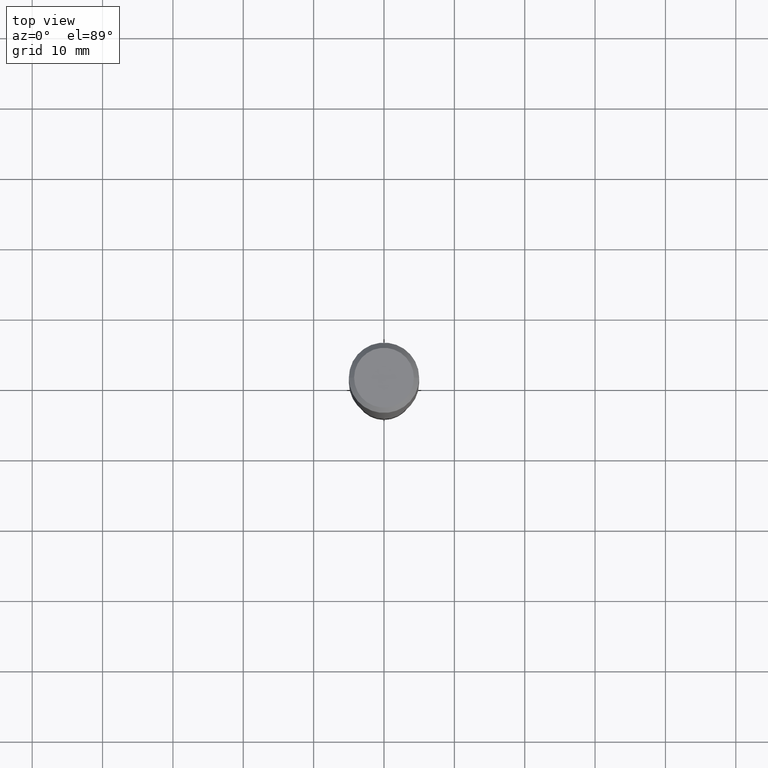
[diagram: clean part render]
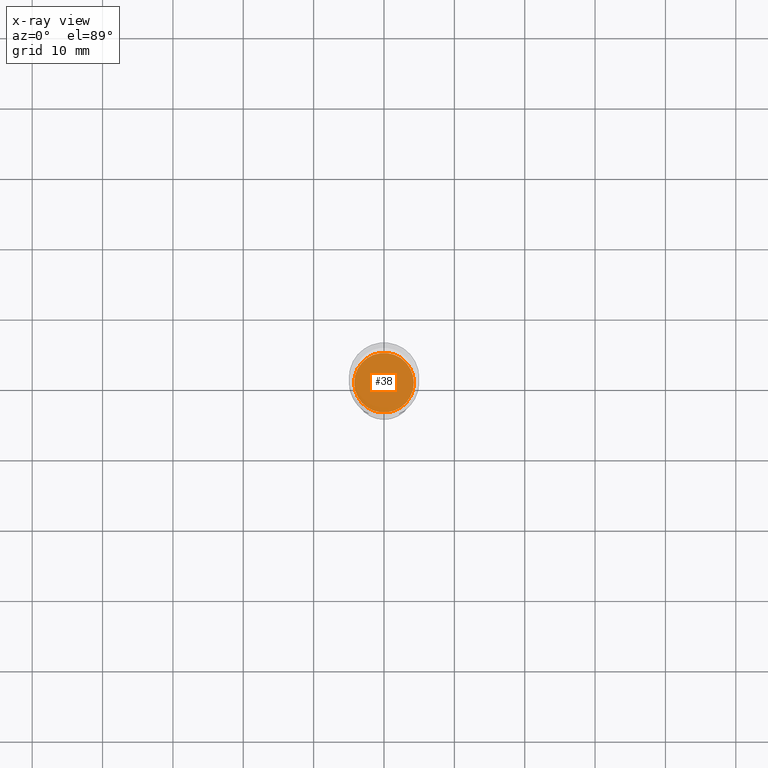
[diagram: x-ray — body ghosted, one internal face saturated and labeled with its STEP entity id]
A machine part, top view, then the same camera in x-ray: the body is ghosted and one INTERNAL B-rep face — a face not visible from any outside direction — is saturated and labeled: STEP entity #38.
In plain terms, the highlighted planar face has unit normal (-0, 0, 1).
Its self-contained STEP definition (entity closure, byte-faithful):
#4 = DIRECTION ( 'NONE',  ( 1.000000000000000000, -6.982962677686265922E-15, 0.000000000000000000 ) ) ;
#29 = CIRCLE ( 'NONE', #111, 0.1668000000000000038 ) ;
#38 = ADVANCED_FACE ( 'NONE', ( #428 ), #382, .F. ) ;
#56 = VERTEX_POINT ( 'NONE', #252 ) ;
#104 = CARTESIAN_POINT ( 'NONE',  ( 4.043338124146504977E-29, -5.772815245643255982E-15, -1.653399999999999981 ) ) ;
#111 = AXIS2_PLACEMENT_3D ( 'NONE', #366, #257, #328 ) ;
#115 = EDGE_LOOP ( 'NONE', ( #412, #471 ) ) ;
#189 = CARTESIAN_POINT ( 'NONE',  ( -0.1668000000000000038, -4.584980735221298038E-15, -1.653399999999999981 ) ) ;
#204 = DIRECTION ( 'NONE',  ( -2.438088387897960049E-29, 3.491481338843145188E-15, 1.000000000000000000 ) ) ;
#208 = VERTEX_POINT ( 'NONE', #189 ) ;
#223 = AXIS2_PLACEMENT_3D ( 'NONE', #396, #204, #424 ) ;
#249 = DIRECTION ( 'NONE',  ( -2.445468806185136597E-29, 3.491481338843145583E-15, 1.000000000000000000 ) ) ;
#252 = CARTESIAN_POINT ( 'NONE',  ( 0.1668000000000000038, -6.937573420281325762E-15, -1.653399999999999981 ) ) ;
#257 = DIRECTION ( 'NONE',  ( -2.445468806185136597E-29, 3.491481338843145583E-15, 1.000000000000000000 ) ) ;
#264 = EDGE_CURVE ( 'NONE', #56, #208, #368, .T. ) ;
#328 = DIRECTION ( 'NONE',  ( 1.000000000000000000, -6.982962677686265922E-15, 0.000000000000000000 ) ) ;
#337 = EDGE_CURVE ( 'NONE', #208, #56, #29, .T. ) ;
#344 = AXIS2_PLACEMENT_3D ( 'NONE', #104, #249, #4 ) ;
#366 = CARTESIAN_POINT ( 'NONE',  ( 4.043338124146504977E-29, -5.772815245643255982E-15, -1.653399999999999981 ) ) ;
#368 = CIRCLE ( 'NONE', #344, 0.1668000000000000038 ) ;
#382 = PLANE ( 'NONE',  #223 ) ;
#396 = CARTESIAN_POINT ( 'NONE',  ( 2.152396427910900327E-29, -8.480751380370169184E-15, -1.653399999999999981 ) ) ;
#412 = ORIENTED_EDGE ( 'NONE', *, *, #264, .F. ) ;
#424 = DIRECTION ( 'NONE',  ( 1.000000000000000000, -6.982962677686265922E-15, 4.876176775795935793E-29 ) ) ;
#428 = FACE_OUTER_BOUND ( 'NONE', #115, .T. ) ;
#471 = ORIENTED_EDGE ( 'NONE', *, *, #337, .F. ) ;